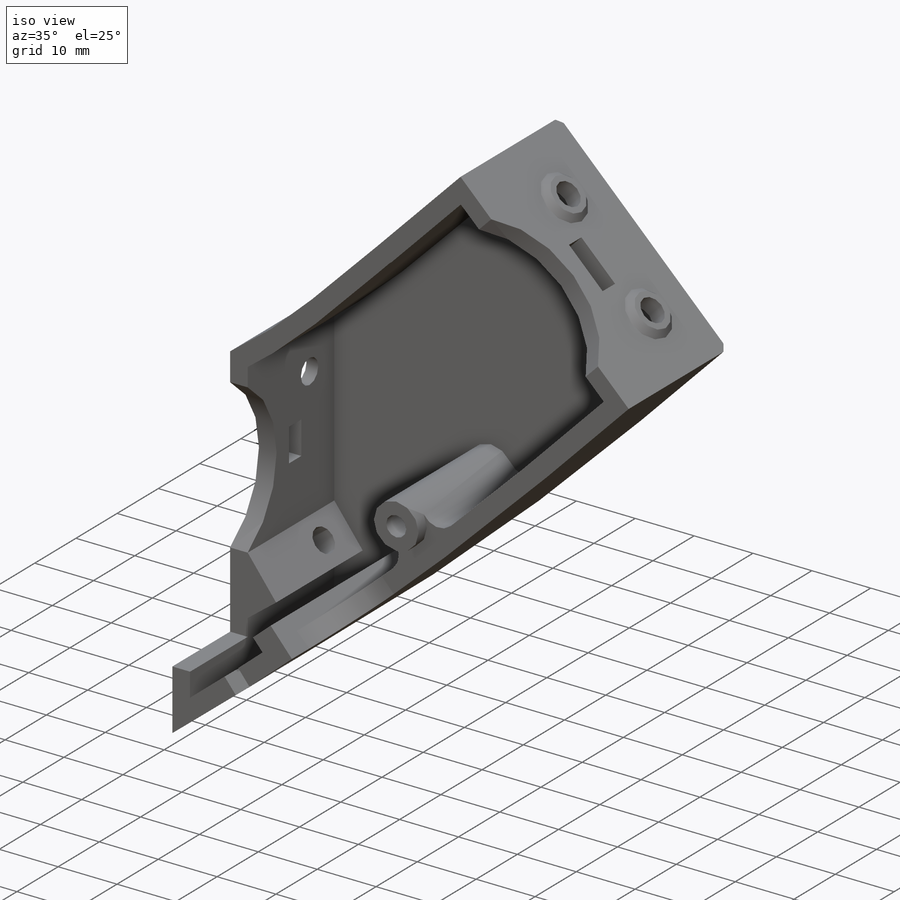
[diagram: iso view]
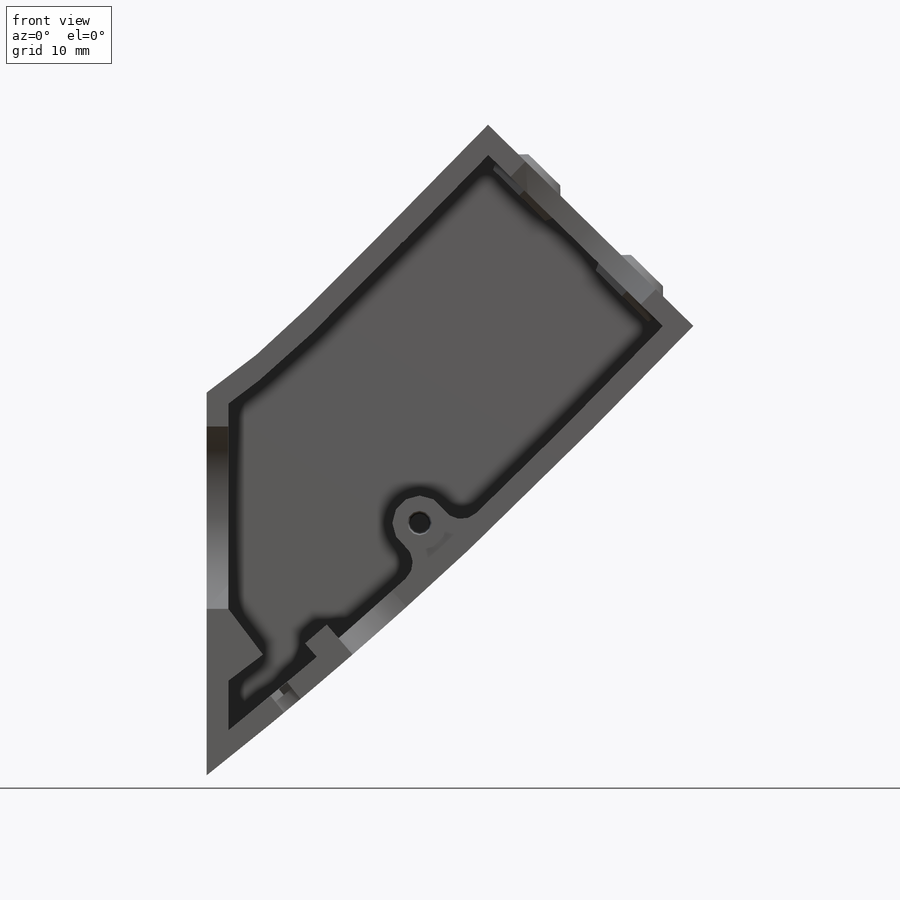
[diagram: front view]
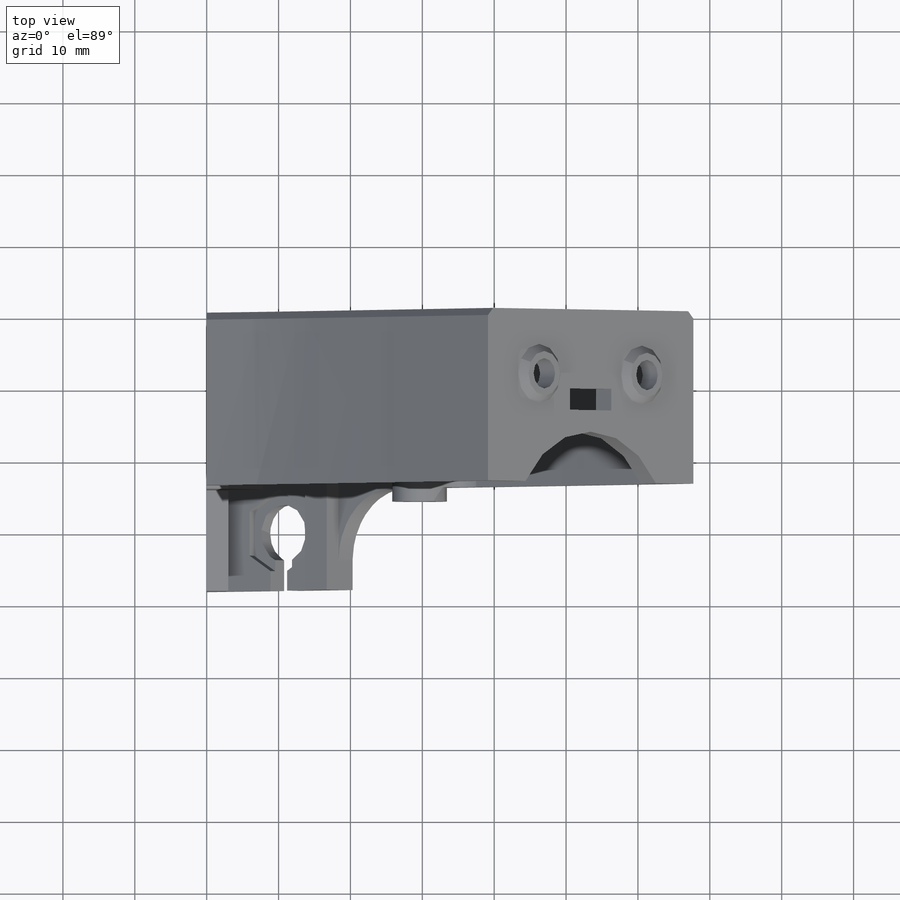
[diagram: top view]
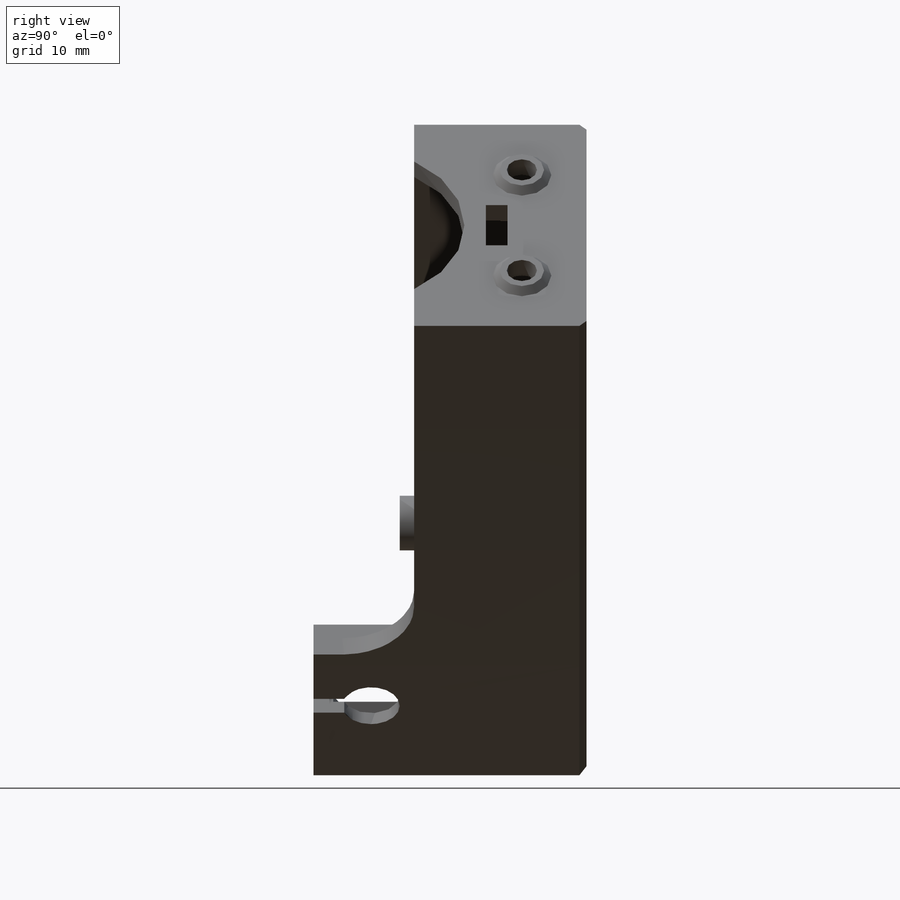
[diagram: right view]
SOLIDWORKS PART (.sldprt)
format: sldprt  version: not decoded by parser v0  size: 9,483,776 bytes
history: native  units: mm
features: sketch x44, cut_extrude x26, extrude x15, pattern_linear x4, chamfer x2, material x1, plane x1 (+15 scaffold rows collapsed; 4 parser-record rows omitted)
feature tree (112):
  scaffold x15  (default folders/planes/origin — collapsed)
  material  "Material <not specified>"
  sketch  "Sketch1"  dims[D1=~50.140246mm]
  extrude  "Boss-Extrude1"  Depth=3mm
  sketch  "Sketch2"  dims[D1=24.0mm D5=3.0mm D6=1.0mm D7=5.0mm]
  parser-record x4  (decoder bookkeeping rows leaked as tree rows — omitted from the tree; the rows remain in map.json)
  sketch  "Sketch3"
  cut_extrude  "Cut-Screw Holes To Base"  Depth=10mm
  sketch  "Sketch4"  dims[D1=2.1mm]
  cut_extrude  "Cut-Alignment Cone"  Depth=1mm
  sketch  "Sketch6"  dims[D1=8.0mm]
  extrude  "Boss-Screw Wedge"  [1 undecoded]
  sketch  "Sketch7"
  cut_extrude  "Cut-Wedge Holes"  [1 undecoded]
  pattern_linear  "LPattern4"  Count1=2 Count2=1 Spacing1=11mm Spacing2=10mm
  sketch  "Sketch53"  dims[D1=20.0mm]
  extrude  "Boss-Extrude23"  [1 undecoded]
  sketch  "Sketch54"
  cut_extrude  "Cut-Extrude16"  [1 undecoded]
  sketch  "Sketch55"
  chamfer  "Chamfer2"  Distance=1mm Angle=45deg
  extrude  "Extrude-Thin1"  Depth=3mm
  sketch  "Sketch56"  dims[D1=6.0mm]
  sketch  "Sketch49"  dims[D1=4.2mm D2=2.0mm]
  extrude  "Boss-Cone2"  Depth=1mm
  sketch  "Sketch28"  dims[D1=4.2mm]
  cut_extrude  "Cut-Screw Hole2"  [1 undecoded]
  sketch  "Sketch410"  dims[D1=4.2mm D2=2.0mm]
  extrude  "Boss-Cone3"  Depth=1mm
  sketch  "Sketch29"  dims[D1=4.2mm]
  cut_extrude  "Cut-Screw Hole3"  [1 undecoded]
  sketch  "Sketch210"  dims[D1=4.2mm]
  cut_extrude  "Cut-Screw Hole4"  [1 undecoded]
  sketch  "Sketch38"  dims[D1=2.1mm]
  cut_extrude  "Cut-Cone Indentation"  Depth=1mm
  sketch  "Sketch211"  dims[D1=4.2mm]
  cut_extrude  "Cut-Screw Hole5"  [1 undecoded]
  sketch  "Sketch39"  dims[D1=2.1mm]
  cut_extrude  "Cut-Cone Indentation1"  Depth=1mm
  sketch  "Sketch212"  dims[D1=7.1mm]
  cut_extrude  "Cut-Extrude17"  Depth=1mm
  sketch  "Sketch310"  dims[D1=2.0mm]
  extrude  "Boss-Extrude2"  Depth=1mm
  sketch  "Sketch213"  dims[D1=7.1mm]
  cut_extrude  "Cut-Extrude19"  Depth=1mm
  sketch  "Sketch311"  dims[D1=2.0mm]
  extrude  "Boss-Extrude25"  Depth=1mm
  pattern_linear  "LPattern2"  Count1=2 Count2=1 Spacing1=11mm Spacing2=10mm
  pattern_linear  "LPattern3"  Count1=2 Count2=1 Spacing1=11mm Spacing2=10mm
  sketch  "Sketch411"  dims[D1=3.0mm D2=10.0mm D3=8.0mm]
  cut_extrude  "Cut-Zip Tie Slot"  [1 undecoded]
  sketch  "Sketch412"  dims[D2=~24.715516mm D1=3.0mm]
  cut_extrude  "Cut-Wire Opening"  [1 undecoded]
  sketch  "Sketch413"  dims[D1=~24.229495mm]
  cut_extrude  "Cut-Wire Opening Angled"  [1 undecoded]
  sketch  "Sketch414"  dims[D1=3.0mm]
  cut_extrude  "Cut-Zip Tie Slot Angled"  [1 undecoded]
  sketch  "Sketch-End Hole Centers"  dims[D1=6.0mm]
  sketch  "Sketch35"  dims[D1=2.0mm]
  cut_extrude  "Cut-End Holes"  [1 undecoded]
  sketch  "Sketch41"  dims[D1=4.2mm D2=2.0mm]
  extrude  "Boss-Cone"  Depth=1mm
  sketch  "Sketch21"  dims[D1=4.2mm]
  cut_extrude  "Cut-Screw Hole"  [1 undecoded]
  sketch  "Sketch42"  dims[D1=4.2mm D2=2.0mm]
  extrude  "Boss-Cone1"  Depth=1mm
  sketch  "Sketch22"  dims[D1=4.2mm]
  cut_extrude  "Cut-Screw Hole1"  [1 undecoded]
  sketch  "Sketch26"  dims[D1=7.1mm]
  cut_extrude  "Cut-Extrude1"  Depth=1mm
  sketch  "Sketch36"  dims[D1=2.0mm]
  extrude  "Boss-Extrude21"  Depth=1mm
  sketch  "Sketch27"  dims[D1=7.1mm]
  cut_extrude  "Cut-Extrude13"  Depth=1mm
  sketch  "Sketch37"  dims[D1=2.0mm]
  extrude  "Boss-Extrude22"  Depth=1mm
  pattern_linear  "LPattern1"  Count1=2 Count2=1 Spacing1=11mm Spacing2=10mm
  sketch  "Sketch44"  dims[c1.D3=3.6mm c1.D4=3.6mm c2.D3=7.6mm c2.D1=46.25mm c2.D2=8.0mm c2.D4=2.0mm]
  extrude  "Boss-Printrboard Mount"  Depth=2mm
  sketch  "Sketch47"  dims[D1=2.8mm]
  cut_extrude  "Cut-Printrboard Screw"  Depth=8mm
  sketch  "Sketch45"  dims[D1=12.0mm]
  extrude  "Boss-Power Mount"  Depth=14mm
  plane  "Plane1"
  sketch  "Sketch46"  dims[D1=8.0mm D2=2.0mm]
  cut_extrude  "Cut-Power Hole"  [1 undecoded]
  sketch  "Sketch48"  dims[D1=~6.032534mm]
  cut_extrude  "Cut-Power Nut Hole"  Depth=1mm
  sketch  "Sketch50"  dims[D1=3.0mm]
  cut_extrude  "Cut-Extrude15"  [1 undecoded]
  chamfer  "Chamfer1"  Distance=1mm Angle=45deg
  sketch  "Sketch415"  dims[D3=7.6mm D1=8.0mm D2=46.25mm]
  extrude  "Boss-Printrboard Screw Boss"  Depth=2mm
  sketch  "Sketch416"  dims[D1=3.4mm]
  cut_extrude  "Cut-Printrboard Screw Hole"  Depth=15mm
decode coverage: 70 of 91 modeling features carry decoded parameters
note: ~ marks probable driven/reference dimensions
note: 17 parameter values undecoded
summary: no parameter record found for 17 features
note: suppression state not decoded; provenance and decode notes live in map.json
